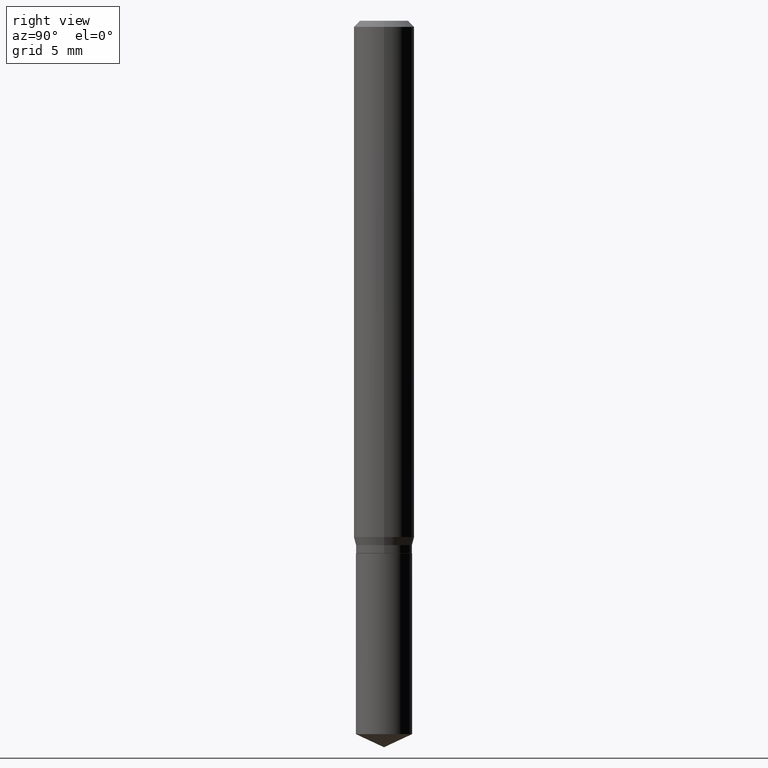
[diagram: clean part render]
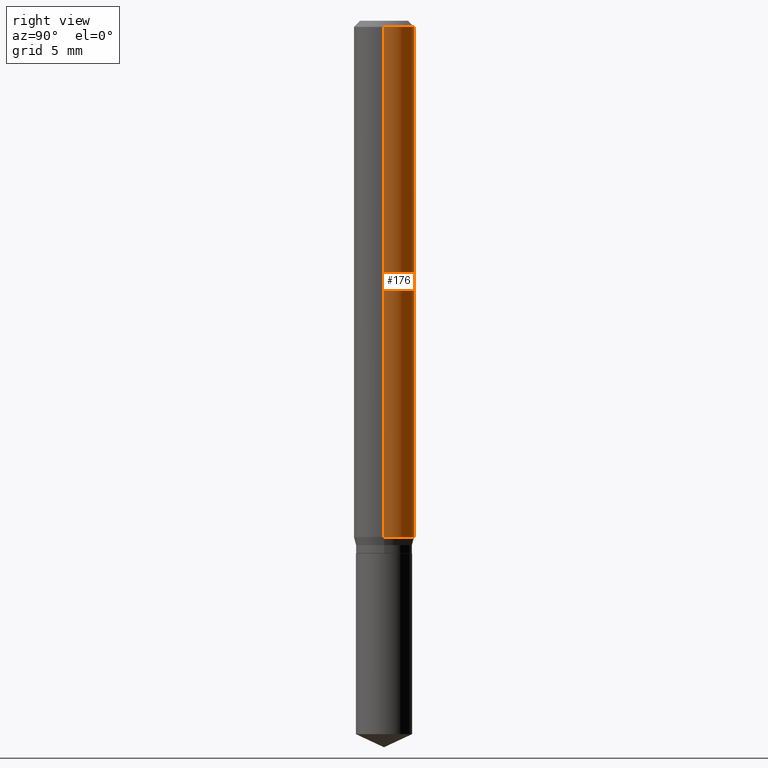
[diagram: same view with one face highlighted and labeled with its STEP entity id]
A machine part, right view. The second image highlights one B-rep face of the part: STEP entity #176.
In plain terms, the highlighted cylindrical surface (edge-blend (fillet) strip) has radius 1.5875 mm, axis along (-0, 0, 1).
Its self-contained STEP definition (entity closure, byte-faithful):
#11 = CIRCLE ( 'NONE', #319, 0.06250000000000012490 ) ;
#15 = CYLINDRICAL_SURFACE ( 'NONE', #112, 0.06250000000000006939 ) ;
#29 = VERTEX_POINT ( 'NONE', #465 ) ;
#42 = DIRECTION ( 'NONE',  ( -2.445468806185136877E-29, 3.491481338843145188E-15, 1.000000000000000000 ) ) ;
#66 = EDGE_CURVE ( 'NONE', #79, #29, #11, .T. ) ;
#79 = VERTEX_POINT ( 'NONE', #421 ) ;
#83 = VECTOR ( 'NONE', #42, 39.37007874015748143 ) ;
#86 = EDGE_LOOP ( 'NONE', ( #486, #444, #236, #423 ) ) ;
#93 = DIRECTION ( 'NONE',  ( -2.445468806185136877E-29, 3.491481338843145188E-15, 1.000000000000000000 ) ) ;
#95 = DIRECTION ( 'NONE',  ( 1.000000000000000000, -6.982962677686266711E-15, 4.876176775795935793E-29 ) ) ;
#101 = DIRECTION ( 'NONE',  ( 1.000000000000000000, -6.982962677686266711E-15, 0.000000000000000000 ) ) ;
#112 = AXIS2_PLACEMENT_3D ( 'NONE', #277, #439, #95 ) ;
#131 = DIRECTION ( 'NONE',  ( -2.445468806185136597E-29, 3.491481338843145583E-15, 1.000000000000000000 ) ) ;
#139 = DIRECTION ( 'NONE',  ( 1.000000000000000000, -6.982962677686264344E-15, 0.000000000000000000 ) ) ;
#176 = ADVANCED_FACE ( 'NONE', ( #203 ), #15, .T. ) ;
#186 = EDGE_CURVE ( 'NONE', #268, #218, #447, .T. ) ;
#203 = FACE_OUTER_BOUND ( 'NONE', #86, .T. ) ;
#216 = DIRECTION ( 'NONE',  ( -2.445468806185136597E-29, 3.491481338843145583E-15, 1.000000000000000000 ) ) ;
#218 = VERTEX_POINT ( 'NONE', #334 ) ;
#236 = ORIENTED_EDGE ( 'NONE', *, *, #186, .F. ) ;
#240 = AXIS2_PLACEMENT_3D ( 'NONE', #401, #216, #101 ) ;
#268 = VERTEX_POINT ( 'NONE', #475 ) ;
#276 = LINE ( 'NONE', #430, #393 ) ;
#277 = CARTESIAN_POINT ( 'NONE',  ( 0.000000000000000000, 0.000000000000000000, 0.000000000000000000 ) ) ;
#278 = EDGE_CURVE ( 'NONE', #29, #218, #276, .T. ) ;
#319 = AXIS2_PLACEMENT_3D ( 'NONE', #366, #131, #139 ) ;
#334 = CARTESIAN_POINT ( 'NONE',  ( -0.06250000000000000000, -1.438678788939213377E-15, -0.01250000000000008223 ) ) ;
#366 = CARTESIAN_POINT ( 'NONE',  ( 2.606851098019143624E-29, -3.721892480843014397E-15, -1.065992373906318180 ) ) ;
#393 = VECTOR ( 'NONE', #93, 39.37007874015748143 ) ;
#401 = CARTESIAN_POINT ( 'NONE',  ( 3.056836007731440977E-31, -4.364351673553961068E-17, -0.01250000000000008223 ) ) ;
#421 = CARTESIAN_POINT ( 'NONE',  ( 0.06250000000000012490, -4.158327648198406856E-15, -1.065992373906318180 ) ) ;
#422 = LINE ( 'NONE', #490, #83 ) ;
#423 = ORIENTED_EDGE ( 'NONE', *, *, #427, .F. ) ;
#427 = EDGE_CURVE ( 'NONE', #79, #268, #422, .T. ) ;
#430 = CARTESIAN_POINT ( 'NONE',  ( -0.06250000000000006939, 4.440892098500631092E-16, -3.074334431409319267E-30 ) ) ;
#439 = DIRECTION ( 'NONE',  ( -2.445468806185136597E-29, 3.491481338843145583E-15, 1.000000000000000000 ) ) ;
#444 = ORIENTED_EDGE ( 'NONE', *, *, #278, .T. ) ;
#447 = CIRCLE ( 'NONE', #240, 0.06250000000000000000 ) ;
#465 = CARTESIAN_POINT ( 'NONE',  ( -0.06250000000000012490, -3.277803270992950992E-15, -1.065992373906318180 ) ) ;
#475 = CARTESIAN_POINT ( 'NONE',  ( 0.06250000000000000000, -4.800786840909312308E-16, -0.01250000000000008223 ) ) ;
#486 = ORIENTED_EDGE ( 'NONE', *, *, #66, .T. ) ;
#490 = CARTESIAN_POINT ( 'NONE',  ( 0.06250000000000006939, -4.364351673553921624E-16, 3.047610484872463374E-30 ) ) ;